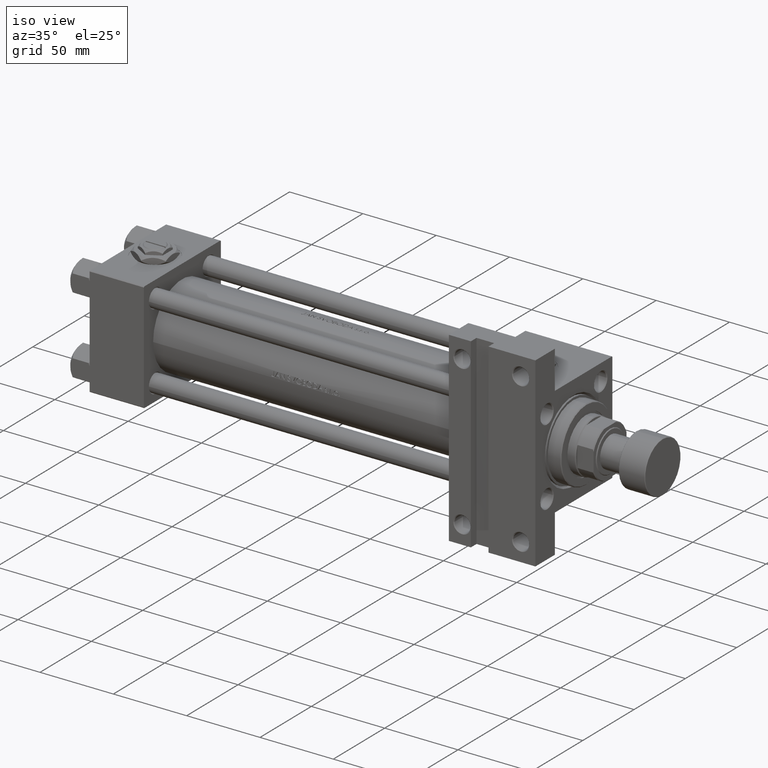
[diagram: clean part render]
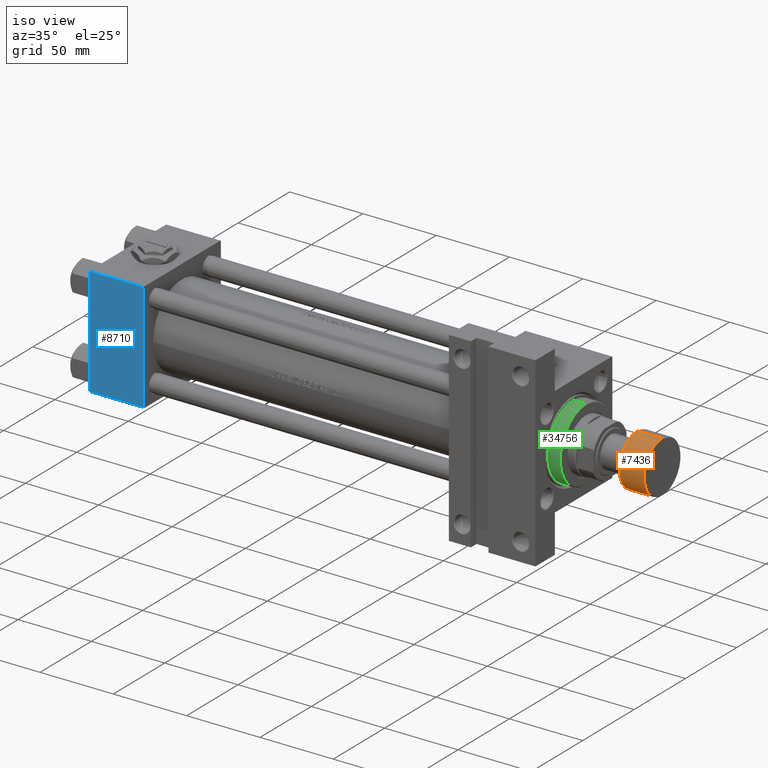
[diagram: same view with three faces highlighted in distinct colors, each labeled with its STEP entity id]
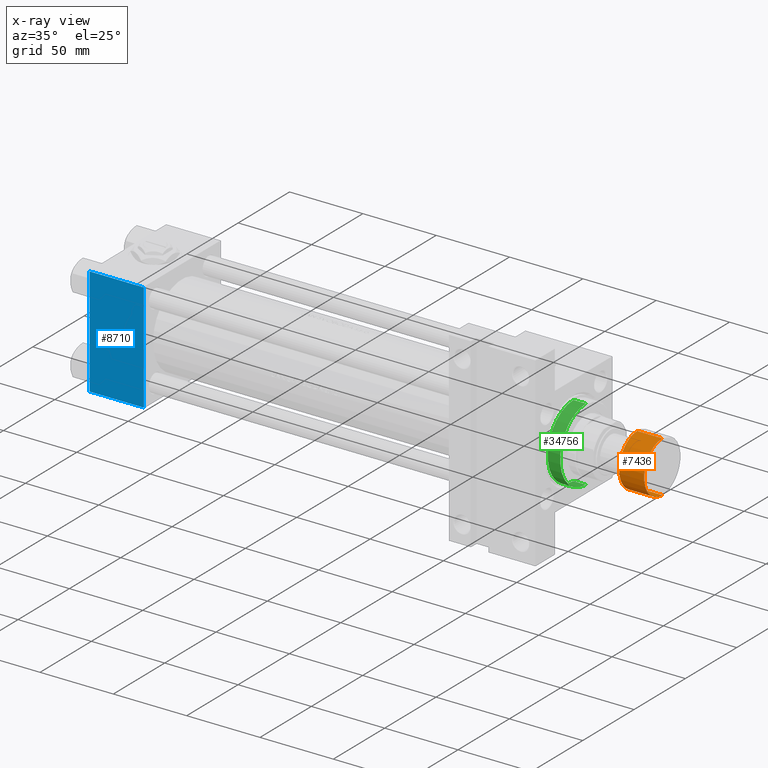
[diagram: x-ray of the same camera — body ghosted, the three highlighted faces saturated]
A machine part, iso view with three faces highlighted in distinct colors.
The next image is the same camera in x-ray (body ghosted, the three faces saturated) — at least one of them is partly hidden behind the body in this view.
Their STEP definitions:

[orange] entity #7436 — the highlighted cylindrical surface (edge-blend (fillet) strip) has radius 17.5 mm, axis along (1, 0, 0).
#815 = ORIENTED_EDGE ( 'NONE', *, *, #39339, .T. ) ;
#2599 = AXIS2_PLACEMENT_3D ( 'NONE', #36004, #46899, #16731 ) ;
#5701 = CIRCLE ( 'NONE', #14621, 17.50000000000000355 ) ;
#6773 = CARTESIAN_POINT ( 'NONE',  ( 17.50000000000000355, 0.000000000000000000, -17.49999999999999645 ) ) ;
#7049 = CARTESIAN_POINT ( 'NONE',  ( 0.000000000000000000, 0.000000000000000000, -0.5000000000000004441 ) ) ;
#7436 = ADVANCED_FACE ( 'NONE', ( #38559 ), #24074, .T. ) ;
#9184 = AXIS2_PLACEMENT_3D ( 'NONE', #7049, #22265, #41017 ) ;
#12182 = DIRECTION ( 'NONE',  ( 0.000000000000000000, 0.000000000000000000, 1.000000000000000000 ) ) ;
#13753 = VECTOR ( 'NONE', #18408, 1000.000000000000000 ) ;
#14621 = AXIS2_PLACEMENT_3D ( 'NONE', #41848, #38043, #25636 ) ;
#15660 = VERTEX_POINT ( 'NONE', #6773 ) ;
#16009 = CARTESIAN_POINT ( 'NONE',  ( -17.50000000000000355, 2.143131898507868643E-15, -18.00000000000000000 ) ) ;
#16731 = DIRECTION ( 'NONE',  ( 1.000000000000000000, 0.000000000000000000, 0.000000000000000000 ) ) ;
#16772 = EDGE_CURVE ( 'NONE', #41495, #39443, #27652, .T. ) ;
#18408 = DIRECTION ( 'NONE',  ( 0.000000000000000000, 0.000000000000000000, 1.000000000000000000 ) ) ;
#20554 = ORIENTED_EDGE ( 'NONE', *, *, #34915, .T. ) ;
#22265 = DIRECTION ( 'NONE',  ( -0.000000000000000000, -0.000000000000000000, -1.000000000000000000 ) ) ;
#24074 = CYLINDRICAL_SURFACE ( 'NONE', #2599, 17.50000000000000355 ) ;
#25432 = CARTESIAN_POINT ( 'NONE',  ( -17.50000000000000355, 2.143131898507868643E-15, -17.49999999999999645 ) ) ;
#25636 = DIRECTION ( 'NONE',  ( 1.000000000000000000, 0.000000000000000000, 0.000000000000000000 ) ) ;
#26001 = CARTESIAN_POINT ( 'NONE',  ( 17.50000000000000355, 0.000000000000000000, -18.00000000000000000 ) ) ;
#27652 = LINE ( 'NONE', #16009, #34604 ) ;
#27902 = VERTEX_POINT ( 'NONE', #30926 ) ;
#30301 = LINE ( 'NONE', #26001, #13753 ) ;
#30926 = CARTESIAN_POINT ( 'NONE',  ( 17.50000000000000355, 0.000000000000000000, -0.5000000000000004441 ) ) ;
#33410 = EDGE_CURVE ( 'NONE', #15660, #27902, #30301, .T. ) ;
#34167 = ORIENTED_EDGE ( 'NONE', *, *, #16772, .F. ) ;
#34604 = VECTOR ( 'NONE', #12182, 1000.000000000000000 ) ;
#34915 = EDGE_CURVE ( 'NONE', #41495, #15660, #5701, .T. ) ;
#35276 = ORIENTED_EDGE ( 'NONE', *, *, #33410, .T. ) ;
#36004 = CARTESIAN_POINT ( 'NONE',  ( 0.000000000000000000, 0.000000000000000000, -18.00000000000000000 ) ) ;
#38043 = DIRECTION ( 'NONE',  ( 0.000000000000000000, 0.000000000000000000, 1.000000000000000000 ) ) ;
#38472 = CARTESIAN_POINT ( 'NONE',  ( -17.50000000000000355, 2.143131898507868643E-15, -0.5000000000000004441 ) ) ;
#38559 = FACE_OUTER_BOUND ( 'NONE', #45552, .T. ) ;
#39339 = EDGE_CURVE ( 'NONE', #27902, #39443, #41584, .T. ) ;
#39443 = VERTEX_POINT ( 'NONE', #38472 ) ;
#41017 = DIRECTION ( 'NONE',  ( 1.000000000000000000, 0.000000000000000000, 0.000000000000000000 ) ) ;
#41495 = VERTEX_POINT ( 'NONE', #25432 ) ;
#41584 = CIRCLE ( 'NONE', #9184, 17.50000000000000355 ) ;
#41848 = CARTESIAN_POINT ( 'NONE',  ( 0.000000000000000000, 0.000000000000000000, -17.49999999999999645 ) ) ;
#45552 = EDGE_LOOP ( 'NONE', ( #34167, #20554, #35276, #815 ) ) ;
#46899 = DIRECTION ( 'NONE',  ( 0.000000000000000000, 0.000000000000000000, 1.000000000000000000 ) ) ;

[blue] entity #8710 — the highlighted planar face has unit normal (0, -1, -0).
#139 = EDGE_LOOP ( 'NONE', ( #16583, #6470, #22563, #33279 ) ) ;
#859 = DIRECTION ( 'NONE',  ( 1.000000000000000000, 0.000000000000000000, 0.000000000000000000 ) ) ;
#2487 = DIRECTION ( 'NONE',  ( -1.000000000000000000, 0.000000000000000000, 0.000000000000000000 ) ) ;
#3390 = VECTOR ( 'NONE', #45635, 1000.000000000000000 ) ;
#4092 = VERTEX_POINT ( 'NONE', #33182 ) ;
#4631 = VECTOR ( 'NONE', #18496, 1000.000000000000000 ) ;
#4943 = VECTOR ( 'NONE', #2487, 1000.000000000000000 ) ;
#5558 = EDGE_CURVE ( 'NONE', #28167, #4092, #25307, .T. ) ;
#6359 = EDGE_CURVE ( 'NONE', #30775, #4092, #14988, .T. ) ;
#6470 = ORIENTED_EDGE ( 'NONE', *, *, #22025, .T. ) ;
#8581 = CARTESIAN_POINT ( 'NONE',  ( 37.00000000000000000, 36.99999999999997868, -37.50000000000000000 ) ) ;
#8710 = ADVANCED_FACE ( 'NONE', ( #44169 ), #9441, .T. ) ;
#8736 = CARTESIAN_POINT ( 'NONE',  ( 37.00000000000000000, 36.99999999999997868, -37.50000000000000000 ) ) ;
#9441 = PLANE ( 'NONE',  #18018 ) ;
#14800 = VECTOR ( 'NONE', #859, 1000.000000000000000 ) ;
#14946 = CARTESIAN_POINT ( 'NONE',  ( 37.00000000000000000, 37.49999999999999289, -37.50000000000000000 ) ) ;
#14988 = LINE ( 'NONE', #49455, #3390 ) ;
#16583 = ORIENTED_EDGE ( 'NONE', *, *, #6359, .F. ) ;
#18018 = AXIS2_PLACEMENT_3D ( 'NONE', #25410, #33014, #29216 ) ;
#18496 = DIRECTION ( 'NONE',  ( 0.000000000000000000, -1.000000000000000000, -9.251858538542972814E-17 ) ) ;
#19821 = CARTESIAN_POINT ( 'NONE',  ( 0.000000000000000000, 36.99999999999997868, -37.50000000000000000 ) ) ;
#22025 = EDGE_CURVE ( 'NONE', #30775, #32704, #43704, .T. ) ;
#22563 = ORIENTED_EDGE ( 'NONE', *, *, #46969, .T. ) ;
#25307 = LINE ( 'NONE', #29365, #4943 ) ;
#25410 = CARTESIAN_POINT ( 'NONE',  ( 37.00000000000000000, 37.49999999999999289, -37.50000000000000000 ) ) ;
#25847 = LINE ( 'NONE', #14946, #4631 ) ;
#28167 = VERTEX_POINT ( 'NONE', #42467 ) ;
#29216 = DIRECTION ( 'NONE',  ( 0.000000000000000000, 1.000000000000000000, 9.251858538542972814E-17 ) ) ;
#29365 = CARTESIAN_POINT ( 'NONE',  ( 0.000000000000000000, -37.00000000000002132, -37.50000000000000711 ) ) ;
#30775 = VERTEX_POINT ( 'NONE', #19821 ) ;
#32704 = VERTEX_POINT ( 'NONE', #8581 ) ;
#33014 = DIRECTION ( 'NONE',  ( 0.000000000000000000, 9.251858538542972814E-17, -1.000000000000000000 ) ) ;
#33182 = CARTESIAN_POINT ( 'NONE',  ( 0.000000000000000000, -37.00000000000002132, -37.50000000000000711 ) ) ;
#33279 = ORIENTED_EDGE ( 'NONE', *, *, #5558, .T. ) ;
#42467 = CARTESIAN_POINT ( 'NONE',  ( 37.00000000000000000, -37.00000000000002132, -37.50000000000000711 ) ) ;
#43704 = LINE ( 'NONE', #8736, #14800 ) ;
#44169 = FACE_OUTER_BOUND ( 'NONE', #139, .T. ) ;
#45635 = DIRECTION ( 'NONE',  ( 0.000000000000000000, -1.000000000000000000, -9.251858538542972814E-17 ) ) ;
#46969 = EDGE_CURVE ( 'NONE', #32704, #28167, #25847, .T. ) ;
#49455 = CARTESIAN_POINT ( 'NONE',  ( 0.000000000000000000, 37.49999999999999289, -37.50000000000000000 ) ) ;

[green] entity #34756 — the highlighted cylindrical surface (partial cylindrical patch) has radius 25 mm, axis along (-1, 0, 0).
#299 = DIRECTION ( 'NONE',  ( -0.000000000000000000, -0.000000000000000000, -1.000000000000000000 ) ) ;
#472 = CARTESIAN_POINT ( 'NONE',  ( 25.00000000000000000, 3.061616997868383043E-15, 28.69999999999999929 ) ) ;
#799 = AXIS2_PLACEMENT_3D ( 'NONE', #42656, #299, #26956 ) ;
#3048 = DIRECTION ( 'NONE',  ( 1.000000000000000000, 0.000000000000000000, 0.000000000000000000 ) ) ;
#6064 = VERTEX_POINT ( 'NONE', #26700 ) ;
#10561 = AXIS2_PLACEMENT_3D ( 'NONE', #11238, #19113, #34560 ) ;
#10988 = AXIS2_PLACEMENT_3D ( 'NONE', #22580, #19042, #3048 ) ;
#11238 = CARTESIAN_POINT ( 'NONE',  ( 0.000000000000000000, 0.000000000000000000, 37.20000000000001705 ) ) ;
#16111 = LINE ( 'NONE', #39891, #24634 ) ;
#19042 = DIRECTION ( 'NONE',  ( 0.000000000000000000, 0.000000000000000000, 1.000000000000000000 ) ) ;
#19113 = DIRECTION ( 'NONE',  ( 0.000000000000000000, 0.000000000000000000, -1.000000000000000000 ) ) ;
#19361 = CYLINDRICAL_SURFACE ( 'NONE', #799, 25.00000000000000000 ) ;
#20628 = EDGE_CURVE ( 'NONE', #31595, #6064, #23556, .T. ) ;
#20816 = VERTEX_POINT ( 'NONE', #472 ) ;
#21519 = CIRCLE ( 'NONE', #10988, 25.00000000000000000 ) ;
#22111 = ORIENTED_EDGE ( 'NONE', *, *, #34747, .T. ) ;
#22580 = CARTESIAN_POINT ( 'NONE',  ( 0.000000000000000000, 0.000000000000000000, 28.69999999999999929 ) ) ;
#23556 = LINE ( 'NONE', #46628, #39785 ) ;
#23714 = EDGE_LOOP ( 'NONE', ( #22111, #34353, #34838, #29674 ) ) ;
#23935 = DIRECTION ( 'NONE',  ( -0.000000000000000000, -0.000000000000000000, -1.000000000000000000 ) ) ;
#24634 = VECTOR ( 'NONE', #23935, 1000.000000000000000 ) ;
#25224 = VERTEX_POINT ( 'NONE', #28539 ) ;
#26700 = CARTESIAN_POINT ( 'NONE',  ( -25.00000000000000000, 0.000000000000000000, 28.69999999999999929 ) ) ;
#26956 = DIRECTION ( 'NONE',  ( -1.000000000000000000, 0.000000000000000000, 0.000000000000000000 ) ) ;
#27576 = CIRCLE ( 'NONE', #10561, 25.00000000000000000 ) ;
#27857 = EDGE_CURVE ( 'NONE', #20816, #6064, #21519, .T. ) ;
#28539 = CARTESIAN_POINT ( 'NONE',  ( 25.00000000000000000, 3.061616997868383043E-15, 37.20000000000001705 ) ) ;
#29674 = ORIENTED_EDGE ( 'NONE', *, *, #20628, .F. ) ;
#31595 = VERTEX_POINT ( 'NONE', #31960 ) ;
#31960 = CARTESIAN_POINT ( 'NONE',  ( -25.00000000000000000, 0.000000000000000000, 37.20000000000001705 ) ) ;
#34353 = ORIENTED_EDGE ( 'NONE', *, *, #41424, .T. ) ;
#34560 = DIRECTION ( 'NONE',  ( 1.000000000000000000, 0.000000000000000000, 0.000000000000000000 ) ) ;
#34747 = EDGE_CURVE ( 'NONE', #31595, #25224, #27576, .T. ) ;
#34756 = ADVANCED_FACE ( 'NONE', ( #43394 ), #19361, .T. ) ;
#34838 = ORIENTED_EDGE ( 'NONE', *, *, #27857, .T. ) ;
#38776 = DIRECTION ( 'NONE',  ( -0.000000000000000000, -0.000000000000000000, -1.000000000000000000 ) ) ;
#39785 = VECTOR ( 'NONE', #38776, 1000.000000000000000 ) ;
#39891 = CARTESIAN_POINT ( 'NONE',  ( 25.00000000000000000, 3.061616997868383043E-15, 37.69999999999999574 ) ) ;
#41424 = EDGE_CURVE ( 'NONE', #25224, #20816, #16111, .T. ) ;
#42656 = CARTESIAN_POINT ( 'NONE',  ( 0.000000000000000000, 0.000000000000000000, 37.69999999999999574 ) ) ;
#43394 = FACE_OUTER_BOUND ( 'NONE', #23714, .T. ) ;
#46628 = CARTESIAN_POINT ( 'NONE',  ( -25.00000000000000000, 0.000000000000000000, 37.69999999999999574 ) ) ;